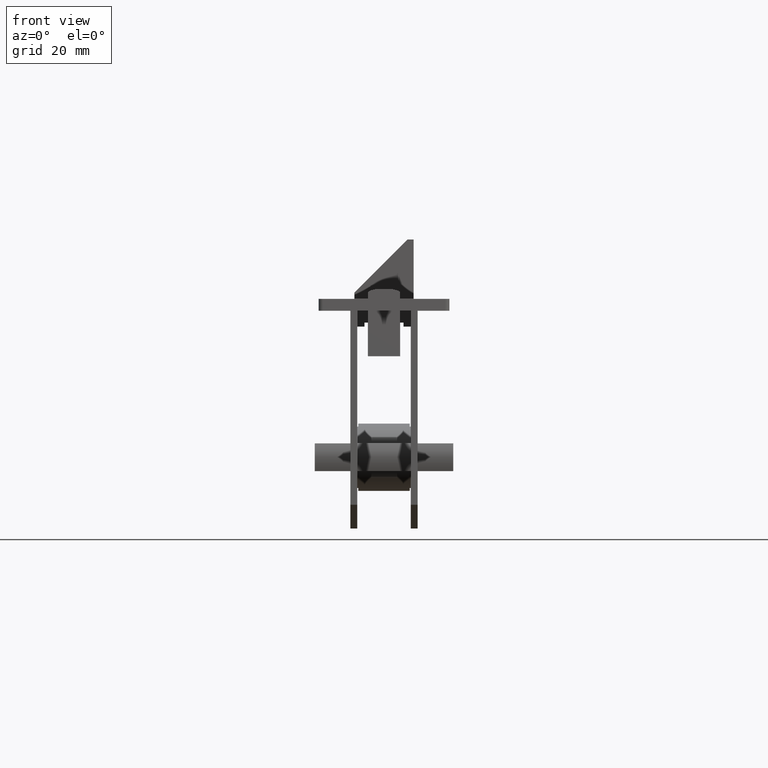
[diagram: clean part render]
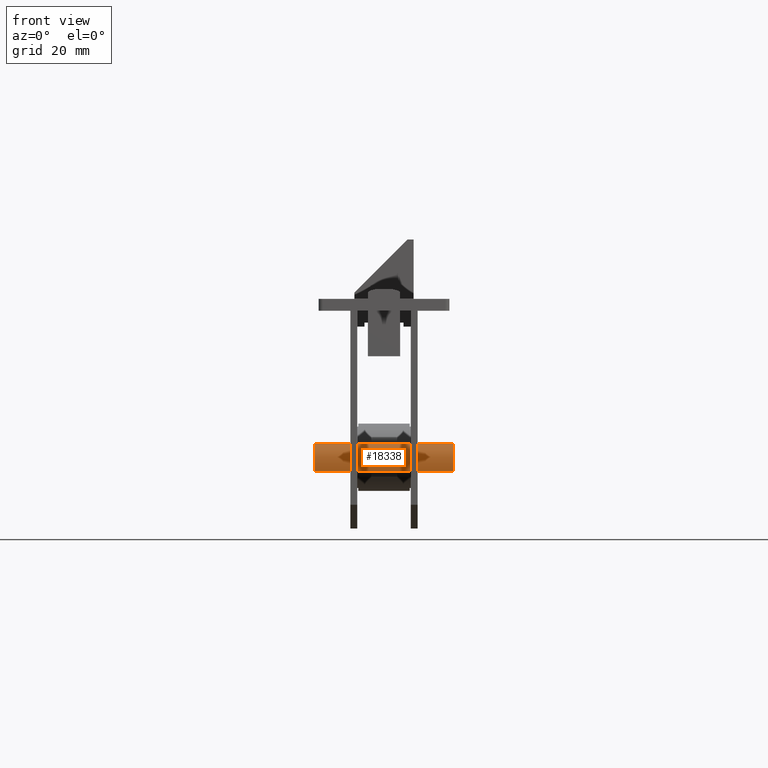
[diagram: same view with one face highlighted and labeled with its STEP entity id]
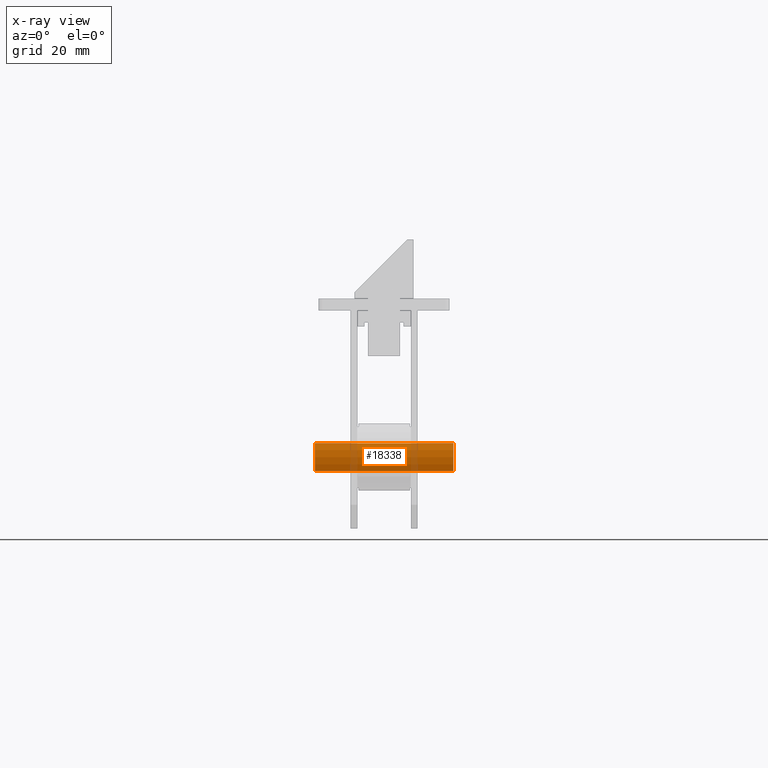
[diagram: x-ray of the same camera — body ghosted, the highlighted face saturated]
A machine part, front view. The second image highlights one B-rep face of the part: STEP entity #18338.
The next image is the same camera in x-ray: the body ghosted, the highlighted face saturated — about 10% of this face is hidden behind the body in this view.
In plain terms, the highlighted cylindrical surface (edge-blend (fillet) strip) has radius 7.5 mm, axis along (1, 0, 0).
Its self-contained STEP definition (entity closure, byte-faithful):
#322 = VERTEX_POINT ( 'NONE', #17531 ) ;
#601 = FACE_OUTER_BOUND ( 'NONE', #8722, .T. ) ;
#1800 = VECTOR ( 'NONE', #21295, 1000.000000000000000 ) ;
#2172 = ORIENTED_EDGE ( 'NONE', *, *, #10643, .F. ) ;
#2293 = CARTESIAN_POINT ( 'NONE',  ( -37.90175425099135964, 1.499999999999973577, -38.50000000000002842 ) ) ;
#3563 = CIRCLE ( 'NONE', #18862, 7.500000000000003553 ) ;
#4019 = CIRCLE ( 'NONE', #15677, 7.500000000000007105 ) ;
#4446 = VERTEX_POINT ( 'NONE', #15113 ) ;
#5312 = DIRECTION ( 'NONE',  ( 1.000000000000000000, 0.000000000000000000, 0.000000000000000000 ) ) ;
#5608 = EDGE_CURVE ( 'NONE', #6504, #322, #4019, .T. ) ;
#5959 = VECTOR ( 'NONE', #11704, 1000.000000000000000 ) ;
#6293 = AXIS2_PLACEMENT_3D ( 'NONE', #2293, #21008, #7885 ) ;
#6504 = VERTEX_POINT ( 'NONE', #9123 ) ;
#7816 = CARTESIAN_POINT ( 'NONE',  ( -37.90175425099135964, -5.133249580710833371, -42.00000000000002132 ) ) ;
#7885 = DIRECTION ( 'NONE',  ( 0.000000000000000000, 0.000000000000000000, -1.000000000000000000 ) ) ;
#8722 = EDGE_LOOP ( 'NONE', ( #13173, #11415, #19490, #2172 ) ) ;
#8903 = DIRECTION ( 'NONE',  ( 0.000000000000000000, 0.000000000000000000, -1.000000000000000000 ) ) ;
#9123 = CARTESIAN_POINT ( 'NONE',  ( 17.49999999999998224, -5.133249580710833371, -35.00000000000002842 ) ) ;
#10069 = LINE ( 'NONE', #16297, #1800 ) ;
#10643 = EDGE_CURVE ( 'NONE', #4446, #6504, #10069, .T. ) ;
#11415 = ORIENTED_EDGE ( 'NONE', *, *, #19633, .T. ) ;
#11704 = DIRECTION ( 'NONE',  ( 1.000000000000000000, 0.000000000000000000, 0.000000000000000000 ) ) ;
#12033 = VERTEX_POINT ( 'NONE', #16969 ) ;
#13173 = ORIENTED_EDGE ( 'NONE', *, *, #17369, .F. ) ;
#15113 = CARTESIAN_POINT ( 'NONE',  ( -17.49999999999998224, -5.133249580710833371, -35.00000000000002842 ) ) ;
#15677 = AXIS2_PLACEMENT_3D ( 'NONE', #18736, #5312, #8903 ) ;
#16297 = CARTESIAN_POINT ( 'NONE',  ( -37.90175425099135964, -5.133249580710833371, -35.00000000000002842 ) ) ;
#16969 = CARTESIAN_POINT ( 'NONE',  ( -17.49999999999998224, -5.133249580710833371, -42.00000000000002132 ) ) ;
#16987 = DIRECTION ( 'NONE',  ( -1.000000000000000000, 1.640012740228606220E-16, -0.000000000000000000 ) ) ;
#17313 = LINE ( 'NONE', #7816, #5959 ) ;
#17369 = EDGE_CURVE ( 'NONE', #12033, #4446, #3563, .T. ) ;
#17531 = CARTESIAN_POINT ( 'NONE',  ( 17.49999999999998224, -5.133249580710833371, -42.00000000000002132 ) ) ;
#18338 = ADVANCED_FACE ( 'NONE', ( #601 ), #20224, .T. ) ;
#18736 = CARTESIAN_POINT ( 'NONE',  ( 17.49999999999998224, 1.499999999999973577, -38.50000000000002842 ) ) ;
#18862 = AXIS2_PLACEMENT_3D ( 'NONE', #20147, #16987, #21880 ) ;
#19490 = ORIENTED_EDGE ( 'NONE', *, *, #5608, .F. ) ;
#19633 = EDGE_CURVE ( 'NONE', #12033, #322, #17313, .T. ) ;
#20147 = CARTESIAN_POINT ( 'NONE',  ( -17.49999999999998224, 1.499999999999973577, -38.50000000000002842 ) ) ;
#20224 = CYLINDRICAL_SURFACE ( 'NONE', #6293, 7.500000000000007105 ) ;
#21008 = DIRECTION ( 'NONE',  ( 1.000000000000000000, 0.000000000000000000, 0.000000000000000000 ) ) ;
#21295 = DIRECTION ( 'NONE',  ( 1.000000000000000000, 0.000000000000000000, 0.000000000000000000 ) ) ;
#21880 = DIRECTION ( 'NONE',  ( 0.000000000000000000, 1.000000000000000000, 0.000000000000000000 ) ) ;